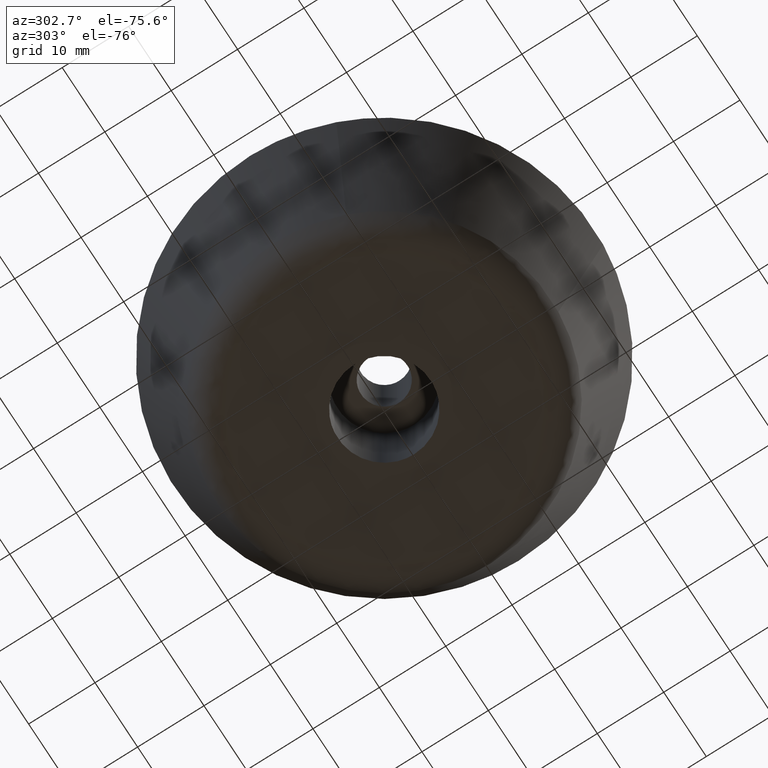
[diagram: clean part render]
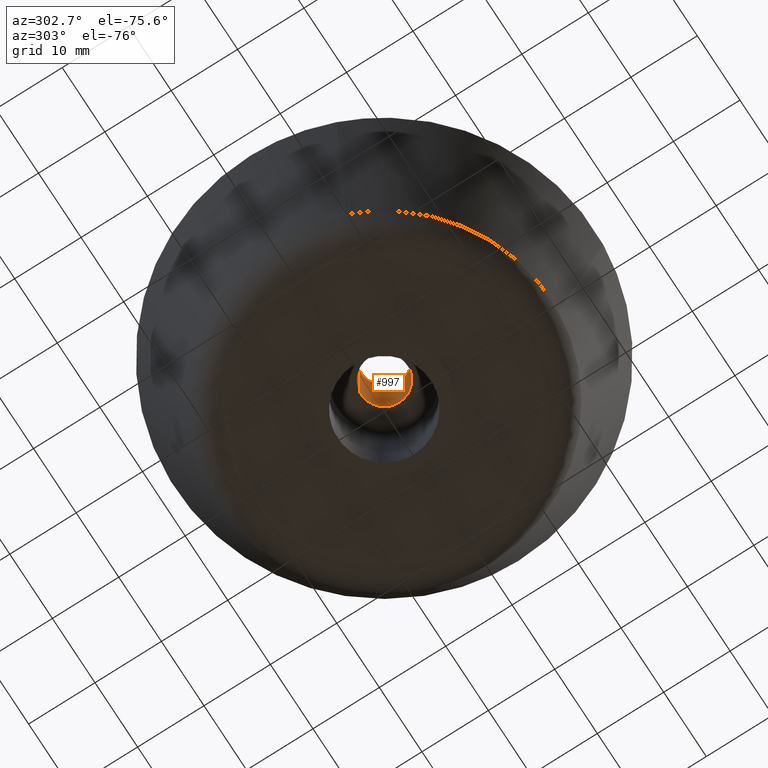
[diagram: same view with one face highlighted and labeled with its STEP entity id]
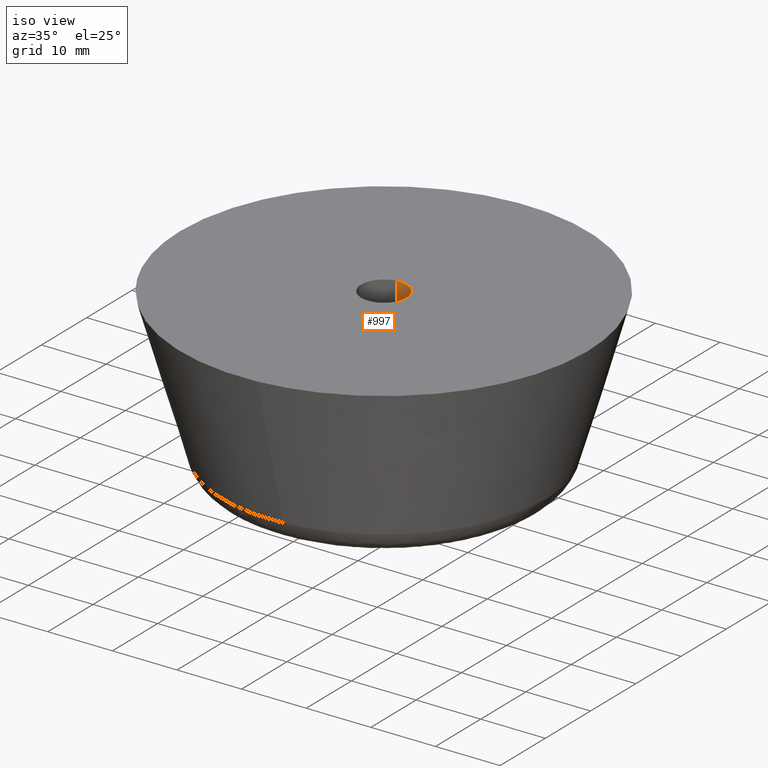
[diagram: same view with one face highlighted and labeled with its STEP entity id]
A machine part, auxiliary view. The second image highlights one B-rep face of the part: STEP entity #997.
A second angle (iso view) of the same face is appended — the face is thin or edge-on in the first view.
In plain terms, the highlighted face is a freeform B-spline surface patch.
Its self-contained STEP definition (entity closure, byte-faithful):
#895=CARTESIAN_POINT('',(-0.413119821298655,3.475533342272832,26.275000000000006));
#896=CARTESIAN_POINT('',(-0.313651550232922,3.487356654070120,26.275000000000009));
#897=CARTESIAN_POINT('',(-0.213669888371999,3.493471794476533,26.275000000000009));
#898=CARTESIAN_POINT('',(3.279801906104533,3.707141682848533,26.275000000000006));
#899=CARTESIAN_POINT('',(3.493471794476533,0.213669888371999,26.275000000000009));
#900=CARTESIAN_POINT('',(3.707141682848533,-3.279801906104533,26.275000000000006));
#901=CARTESIAN_POINT('',(0.213669888371999,-3.493471794476533,26.275000000000009));
#902=CARTESIAN_POINT('',(-0.413119821298655,3.475533342272832,14.718124999999995));
#903=CARTESIAN_POINT('',(-0.313651550232922,3.487356654070120,14.718125000000001));
#904=CARTESIAN_POINT('',(-0.213669888371999,3.493471794476533,14.718125000000001));
#905=CARTESIAN_POINT('',(3.279801906104533,3.707141682848533,14.718124999999992));
#906=CARTESIAN_POINT('',(3.493471794476533,0.213669888371999,14.718125000000001));
#907=CARTESIAN_POINT('',(3.707141682848533,-3.279801906104533,14.718124999999992));
#908=CARTESIAN_POINT('',(0.213669888371999,-3.493471794476533,14.718125000000001));
#916=(BOUNDED_SURFACE()B_SPLINE_SURFACE(2,1,((#895,#902),(#896,#903),(#897,#904),(#898,#905),(#899,#906),(#900,#907),(#901,#908)),.UNSPECIFIED.,.F.,.F.,.U.)B_SPLINE_SURFACE_WITH_KNOTS((3,2,2,3),(2,2),(0.0,0.231959594928934,6.030949468152262,11.829939341375590),(0.0,11.556875000000010),.UNSPECIFIED.)GEOMETRIC_REPRESENTATION_ITEM()RATIONAL_B_SPLINE_SURFACE(((0.977505800795127,0.977505800795127),(0.988284271247462,0.988284271247462),(1.0,1.0),(0.707106781186548,0.707106781186548),(1.0,1.0),(0.707106781186548,0.707106781186548),(1.0,1.0)))REPRESENTATION_ITEM('')SURFACE());
#917=CARTESIAN_POINT('',(-0.413119821346807,3.475533342267109,26.0));
#918=VERTEX_POINT('',#917);
#919=CARTESIAN_POINT('',(3.500000000000000,0.0,26.0));
#920=VERTEX_POINT('',#919);
#921=CARTESIAN_POINT('',(-0.413119821346807,3.475533342267108,26.0));
#922=CARTESIAN_POINT('',(-0.207284418830347,3.499999999999999,25.999999999999993));
#923=CARTESIAN_POINT('',(0.0,3.500000000000000,26.0));
#924=CARTESIAN_POINT('',(3.500000000000000,3.500000000000000,26.000000000000007));
#925=CARTESIAN_POINT('',(3.500000000000000,0.0,26.0));
#933=(BOUNDED_CURVE()B_SPLINE_CURVE(2,(#921,#922,#923,#924,#925),.UNSPECIFIED.,.F.,.U.)B_SPLINE_CURVE_WITH_KNOTS((3,2,3),(0.229562473510961,0.250000000000000,0.500000000000000),.UNSPECIFIED.)CURVE()GEOMETRIC_REPRESENTATION_ITEM()RATIONAL_B_SPLINE_CURVE((0.956026754178707,0.976055948328161,1.0,0.707106781186547,1.0))REPRESENTATION_ITEM(''));
#934=EDGE_CURVE('',#918,#920,#933,.T.);
#935=ORIENTED_EDGE('',*,*,#934,.F.);
#936=CARTESIAN_POINT('',(-0.413119821346807,3.475533342267109,15.0));
#937=VERTEX_POINT('',#936);
#938=CARTESIAN_POINT('',(-0.413119821346807,3.475533342267109,26.0));
#939=CARTESIAN_POINT('',(-0.413119821346807,3.475533342267109,15.0));
#940=QUASI_UNIFORM_CURVE('',1,(#938,#939),.UNSPECIFIED.,.F.,.U.);
#941=EDGE_CURVE('',#918,#937,#940,.T.);
#942=ORIENTED_EDGE('',*,*,#941,.T.);
#943=CARTESIAN_POINT('',(3.500000000000000,0.0,15.0));
#944=VERTEX_POINT('',#943);
#945=CARTESIAN_POINT('',(-0.413119821346807,3.475533342267108,15.000000000000005));
#946=CARTESIAN_POINT('',(-0.207284418830347,3.499999999999999,15.000000000000005));
#947=CARTESIAN_POINT('',(0.0,3.500000000000000,15.0));
#948=CARTESIAN_POINT('',(3.500000000000000,3.500000000000000,14.999999999999996));
#949=CARTESIAN_POINT('',(3.500000000000000,0.0,15.0));
#957=(BOUNDED_CURVE()B_SPLINE_CURVE(2,(#945,#946,#947,#948,#949),.UNSPECIFIED.,.F.,.U.)B_SPLINE_CURVE_WITH_KNOTS((3,2,3),(0.229562473510961,0.250000000000000,0.500000000000000),.UNSPECIFIED.)CURVE()GEOMETRIC_REPRESENTATION_ITEM()RATIONAL_B_SPLINE_CURVE((0.956026754178707,0.976055948328161,1.0,0.707106781186547,1.0))REPRESENTATION_ITEM(''));
#958=EDGE_CURVE('',#937,#944,#957,.T.);
#959=ORIENTED_EDGE('',*,*,#958,.T.);
#960=CARTESIAN_POINT('',(0.213669888465486,-3.493471794470816,15.0));
#961=VERTEX_POINT('',#960);
#962=CARTESIAN_POINT('',(3.500000000000000,0.0,15.0));
#963=CARTESIAN_POINT('',(3.500000000000000,-3.292471233993407,15.000000000000005));
#964=CARTESIAN_POINT('',(0.213669888465486,-3.493471794470816,15.000000000000002));
#972=(BOUNDED_CURVE()B_SPLINE_CURVE(2,(#962,#963,#964),.UNSPECIFIED.,.F.,.U.)B_SPLINE_CURVE_WITH_KNOTS((3,3),(0.500000000000000,0.739332962232734),.UNSPECIFIED.)CURVE()GEOMETRIC_REPRESENTATION_ITEM()RATIONAL_B_SPLINE_CURVE((1.0,0.719603993293984,0.976072041653412))REPRESENTATION_ITEM(''));
#973=EDGE_CURVE('',#944,#961,#972,.T.);
#974=ORIENTED_EDGE('',*,*,#973,.T.);
#975=CARTESIAN_POINT('',(0.213669888465487,-3.493471794470816,26.0));
#976=VERTEX_POINT('',#975);
#977=CARTESIAN_POINT('',(0.213669888465487,-3.493471794470816,26.0));
#978=CARTESIAN_POINT('',(0.213669888465486,-3.493471794470816,15.0));
#979=QUASI_UNIFORM_CURVE('',1,(#977,#978),.UNSPECIFIED.,.F.,.U.);
#980=EDGE_CURVE('',#976,#961,#979,.T.);
#981=ORIENTED_EDGE('',*,*,#980,.F.);
#982=CARTESIAN_POINT('',(3.500000000000000,0.0,26.0));
#983=CARTESIAN_POINT('',(3.500000000000000,-3.292471233993407,26.000000000000004));
#984=CARTESIAN_POINT('',(0.213669888465487,-3.493471794470816,26.0));
#992=(BOUNDED_CURVE()B_SPLINE_CURVE(2,(#982,#983,#984),.UNSPECIFIED.,.F.,.U.)B_SPLINE_CURVE_WITH_KNOTS((3,3),(0.500000000000000,0.739332962232734),.UNSPECIFIED.)CURVE()GEOMETRIC_REPRESENTATION_ITEM()RATIONAL_B_SPLINE_CURVE((1.0,0.719603993293984,0.976072041653412))REPRESENTATION_ITEM(''));
#993=EDGE_CURVE('',#920,#976,#992,.T.);
#994=ORIENTED_EDGE('',*,*,#993,.F.);
#995=EDGE_LOOP('',(#935,#942,#959,#974,#981,#994));
#996=FACE_OUTER_BOUND('',#995,.T.);
#997=ADVANCED_FACE('',(#996),#916,.F.);